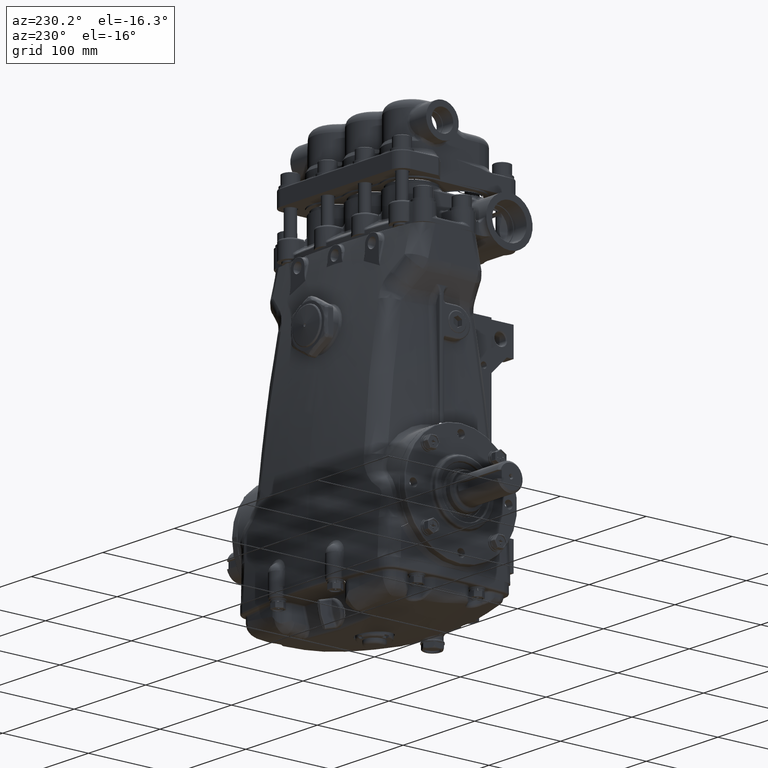
[diagram: clean part render]
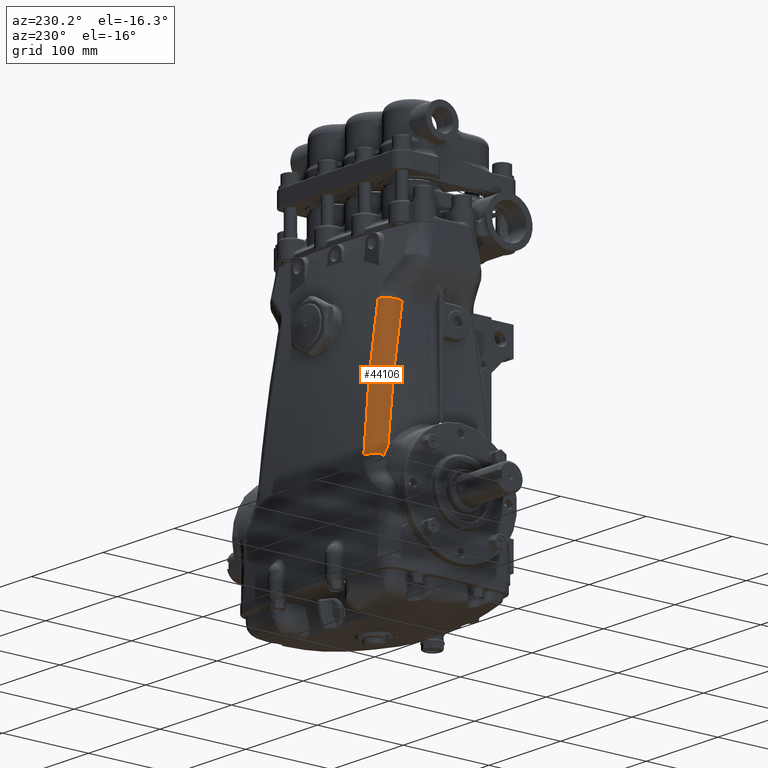
[diagram: same view with one face highlighted and labeled with its STEP entity id]
A machine part, auxiliary view. The second image highlights one B-rep face of the part: STEP entity #44106.
In plain terms, the highlighted face is a freeform B-spline surface patch.
Its self-contained STEP definition (entity closure, byte-faithful):
#56 = CARTESIAN_POINT ( 'NONE',  ( -3.412023746535997937, 2.228146809416287066, 1.648877996829962944 ) ) ;
#6515 = CARTESIAN_POINT ( 'NONE',  ( -3.305250771824411515, 2.539804507432923852, 3.796615217845411117 ) ) ;
#7653 = CARTESIAN_POINT ( 'NONE',  ( -3.316973925557753056, 2.598871768293791185, 3.302693767485248788 ) ) ;
#8103 = CARTESIAN_POINT ( 'NONE',  ( -2.727387038897051141, 2.407829629809868255, 5.270544452481712661 ) ) ;
#9211 = CARTESIAN_POINT ( 'NONE',  ( -2.676857229982789299, 2.070946853352749528, 7.233103527085059881 ) ) ;
#9577 = CARTESIAN_POINT ( 'NONE',  ( -3.401077525312897532, 2.354719680387865832, 1.415475607044618611 ) ) ;
#13749 = AXIS2_PLACEMENT_3D ( 'NONE', #89545, #88416, #35800 ) ;
#14219 = EDGE_CURVE ( 'NONE', #26230, #43195, #84386, .T. ) ;
#15087 = CARTESIAN_POINT ( 'NONE',  ( -3.269692321802375456, 1.460513298219530354, 7.135318008206845697 ) ) ;
#17811 = CARTESIAN_POINT ( 'NONE',  ( -2.780239924302705834, 2.663358001609924752, 3.295541047655350386 ) ) ;
#18902 = CARTESIAN_POINT ( 'NONE',  ( -3.386209788244205487, 2.139713064070962734, 2.568349735116830068 ) ) ;
#26230 = VERTEX_POINT ( 'NONE', #28633 ) ;
#28633 = CARTESIAN_POINT ( 'NONE',  ( -2.837186997480470652, 2.855672659389266510, 1.313526863681635293 ) ) ;
#29652 = VERTEX_POINT ( 'NONE', #31704 ) ;
#31652 = CARTESIAN_POINT ( 'NONE',  ( -3.422593240072738130, 2.259887752766226665, 1.282466704645465638 ) ) ;
#31704 = CARTESIAN_POINT ( 'NONE',  ( -2.676857229982789299, 2.070946853352749528, 7.233103527085059881 ) ) ;
#35457 = CARTESIAN_POINT ( 'NONE',  ( -3.361618648533276410, 2.034251877551805698, 3.486079300572620276 ) ) ;
#35492 = ORIENTED_EDGE ( 'NONE', *, *, #49544, .F. ) ;
#35800 = DIRECTION ( 'NONE',  ( 0.000000000000000000, -0.9833515544445361467, -0.1817132916754141958 ) ) ;
#35843 = B_SPLINE_CURVE_WITH_KNOTS ( 'NONE', 3,
 ( #52093, #105819, #88655, #17811, #52651, #8103, #86972, #9211 ),
 .UNSPECIFIED., .F., .F.,
 ( 4, 2, 2, 4 ),
 ( 0.000000000000000000, 0.03794986814998103225, 0.07589973629996206450, 0.1517994725999241012 ),
 .UNSPECIFIED. ) ;
#36563 = CARTESIAN_POINT ( 'NONE',  ( -3.349694606955345488, 1.975843327882857769, 3.944405702662852509 ) ) ;
#37074 = EDGE_CURVE ( 'NONE', #43195, #86701, #79983, .T. ) ;
#40191 = CARTESIAN_POINT ( 'NONE',  ( -3.354518012884417644, 2.750554523885196723, 1.819490144455548242 ) ) ;
#40694 = CARTESIAN_POINT ( 'NONE',  ( -3.269692321802373680, 1.460513298219533684, 7.135318008206841256 ) ) ;
#41910 = FACE_OUTER_BOUND ( 'NONE', #49374, .T. ) ;
#42473 = CARTESIAN_POINT ( 'NONE',  ( -3.368051740135756145, 2.064080126449676200, 3.241797172651021519 ) ) ;
#43195 = VERTEX_POINT ( 'NONE', #112130 ) ;
#44106 = ADVANCED_FACE ( 'NONE', ( #41910 ), #105051, .T. ) ;
#44111 = ORIENTED_EDGE ( 'NONE', *, *, #37074, .T. ) ;
#49374 = EDGE_LOOP ( 'NONE', ( #76915, #44111, #80024, #93155, #35492 ) ) ;
#49544 = EDGE_CURVE ( 'NONE', #26230, #29652, #35843, .T. ) ;
#49938 = CARTESIAN_POINT ( 'NONE',  ( -2.676857229982788855, 2.070946853352749528, 7.233103527085059881 ) ) ;
#50516 = CARTESIAN_POINT ( 'NONE',  ( -2.727391626180491357, 2.407858021193011844, 5.270364931178337820 ) ) ;
#51074 = CARTESIAN_POINT ( 'NONE',  ( -3.293871002339994636, 1.644875297278592496, 6.166911088640831373 ) ) ;
#52093 = CARTESIAN_POINT ( 'NONE',  ( -2.837186997480470652, 2.855672659389266510, 1.313526863681635293 ) ) ;
#52651 = CARTESIAN_POINT ( 'NONE',  ( -2.766803059944227705, 2.604178637981974465, 3.790044207635421269 ) ) ;
#57382 = CARTESIAN_POINT ( 'NONE',  ( -3.394592116259354864, 2.171678518805231217, 2.262962045627521235 ) ) ;
#58517 = CARTESIAN_POINT ( 'NONE',  ( -3.341604198684125393, 2.704211629085266910, 2.314305608251909785 ) ) ;
#59664 = CARTESIAN_POINT ( 'NONE',  ( -3.230503284124915719, 2.007346878816802072, 7.235374603559454165 ) ) ;
#59944 = VERTEX_POINT ( 'NONE', #40694 ) ;
#61315 = DIRECTION ( 'NONE',  ( 0.02924498063840545378, -0.08067639627460114482, 0.9963112215525844473 ) ) ;
#67083 = CARTESIAN_POINT ( 'NONE',  ( -3.317664160059512923, 1.803797078783872632, 5.194718756889232125 ) ) ;
#67645 = CARTESIAN_POINT ( 'NONE',  ( -3.408309244324856824, 2.219019024289642594, 1.772990347334141070 ) ) ;
#67970 = AXIS2_PLACEMENT_3D ( 'NONE', #69325, #61315, #87060 ) ;
#69325 = CARTESIAN_POINT ( 'NONE',  ( -2.757062907678605068, 2.193555800672997158, 1.257559984735997949 ) ) ;
#74722 = CARTESIAN_POINT ( 'NONE',  ( -3.412023746535997937, 2.228146809416287066, 1.648877996829962944 ) ) ;
#75091 = CARTESIAN_POINT ( 'NONE',  ( -2.837186997480475092, 2.855672659389266510, 1.313526863681624857 ) ) ;
#76242 = CARTESIAN_POINT ( 'NONE',  ( -2.702330158259557358, 2.251865023987564829, 6.253645100800566681 ) ) ;
#76915 = ORIENTED_EDGE ( 'NONE', *, *, #14219, .T. ) ;
#78365 = CARTESIAN_POINT ( 'NONE',  ( -3.314677885994496087, 1.783796561539602976, 5.316465458283545331 ) ) ;
#79983 = B_SPLINE_CURVE_WITH_KNOTS ( 'NONE', 3,
 ( #87892, #9577, #106741, #105631 ),
 .UNSPECIFIED., .F., .F.,
 ( 4, 4 ),
 ( 4.105691395885628804E-16, 0.01011884311821856751 ),
 .UNSPECIFIED. ) ;
#80024 = ORIENTED_EDGE ( 'NONE', *, *, #93472, .F. ) ;
#84386 = CIRCLE ( 'NONE', #67970, 0.6692913385826771977 ) ;
#85950 = CARTESIAN_POINT ( 'NONE',  ( -3.355225521561935320, 2.003805294834428263, 3.730779747307276129 ) ) ;
#86701 = VERTEX_POINT ( 'NONE', #74722 ) ;
#86972 = CARTESIAN_POINT ( 'NONE',  ( -2.702327773508746755, 2.251848087021853129, 6.253736794521518760 ) ) ;
#87060 = DIRECTION ( 'NONE',  ( 0.000000000000000000, 0.9967375520400281186, 0.08071091842652006187 ) ) ;
#87706 = EDGE_CURVE ( 'NONE', #29652, #59944, #106861, .T. ) ;
#87892 = CARTESIAN_POINT ( 'NONE',  ( -3.390487766027045602, 2.406718505480955006, 1.293413938590568746 ) ) ;
#88416 = DIRECTION ( 'NONE',  ( 0.02490029757665672069, -0.1816569495652557431, 0.9830466559910777669 ) ) ;
#88655 = CARTESIAN_POINT ( 'NONE',  ( -2.807991502153638130, 2.769022985825891237, 2.305476115134585946 ) ) ;
#89200 = CARTESIAN_POINT ( 'NONE',  ( -3.398877834969281864, 2.186773139856743153, 2.108903812612397566 ) ) ;
#89545 = CARTESIAN_POINT ( 'NONE',  ( -2.602265884119150829, 1.417238444970173150, 7.110415533239038410 ) ) ;
#90853 = B_SPLINE_CURVE_WITH_KNOTS ( 'NONE', 3,
 ( #106918, #106354, #78365, #36563, #35457, #18902, #89200, #56 ),
 .UNSPECIFIED., .F., .F.,
 ( 4, 2, 2, 4 ),
 ( 8.441528768080324345E-17, 0.07039193455788995968, 0.1055879018368349187, 0.1407838691157798916 ),
 .UNSPECIFIED. ) ;
#92290 = CARTESIAN_POINT ( 'NONE',  ( -2.822314193015493800, 2.815537606187361597, 1.809637524023852917 ) ) ;
#93155 = ORIENTED_EDGE ( 'NONE', *, *, #87706, .F. ) ;
#93472 = EDGE_CURVE ( 'NONE', #59944, #86701, #90853, .T. ) ;
#94536 = CARTESIAN_POINT ( 'NONE',  ( -2.766811350596895647, 2.604217166326758370, 3.789736414380862506 ) ) ;
#100848 = CARTESIAN_POINT ( 'NONE',  ( -3.250768381405691798, 2.187466029555262370, 6.260317576798208883 ) ) ;
#101987 = CARTESIAN_POINT ( 'NONE',  ( -2.780249848885131492, 2.663399266725750891, 3.295180451966416957 ) ) ;
#102552 = CARTESIAN_POINT ( 'NONE',  ( -3.368155235802738900, 2.790547471970053373, 1.323838993264630837 ) ) ;
#105051 =( BOUNDED_SURFACE ( )  B_SPLINE_SURFACE ( 3, 2, ( 
 ( #49938, #59664, #15087 ),
 ( #76242, #100848, #51074 ),
 ( #50516, #110579, #67083 ),
 ( #94536, #6515, #85950 ),
 ( #101987, #7653, #42473 ),
 ( #109437, #58517, #57382 ),
 ( #92290, #40191, #67645 ),
 ( #75091, #102552, #31652 ) ),
 .UNSPECIFIED., .F., .F., .F. ) 
 B_SPLINE_SURFACE_WITH_KNOTS ( ( 4, 2, 2, 4 ),
 ( 3, 3 ),
 ( 0.2725727886429149538, 0.3476365241298011721, 0.3851683918732442535, 0.4227002596166873349 ),
 ( 0.000000000000000000, 1.000000000000000000 ),
 .UNSPECIFIED. ) 
 GEOMETRIC_REPRESENTATION_ITEM ( )  RATIONAL_B_SPLINE_SURFACE ( (
 ( 1.000000000000000000, 0.7684759235987798087, 1.000000000000000000),
 ( 1.000000000000000000, 0.7713435781913434708, 1.000000000000000000),
 ( 1.000000000000000000, 0.7738134170434826098, 1.000000000000000000),
 ( 1.000000000000000000, 0.7769544004608318621, 1.000000000000000000),
 ( 1.000000000000000000, 0.7779078241432019203, 1.000000000000000000),
 ( 1.000000000000000000, 0.7796337955002093922, 1.000000000000000000),
 ( 1.000000000000000000, 0.7804061436773038762, 1.000000000000000000),
 ( 1.000000000000000000, 0.7810887547432305844, 1.000000000000000000) ) ) 
 REPRESENTATION_ITEM ( '' )  SURFACE ( )  );
#105631 = CARTESIAN_POINT ( 'NONE',  ( -3.412023746535997937, 2.228146809416287066, 1.648877996829962944 ) ) ;
#105819 = CARTESIAN_POINT ( 'NONE',  ( -2.822308871440877720, 2.815523245204432534, 1.809815040358777605 ) ) ;
#106354 = CARTESIAN_POINT ( 'NONE',  ( -3.292354361583460065, 1.633310939118002514, 6.227655735173276419 ) ) ;
#106741 = CARTESIAN_POINT ( 'NONE',  ( -3.409708230257064709, 2.295426536734160639, 1.533991576146906066 ) ) ;
#106861 = CIRCLE ( 'NONE', #13749, 0.6692913385826773087 ) ;
#106918 = CARTESIAN_POINT ( 'NONE',  ( -3.269692321802373680, 1.460513298219533684, 7.135318008206841256 ) ) ;
#109437 = CARTESIAN_POINT ( 'NONE',  ( -2.807999669483290273, 2.769050603952768697, 2.305191268259241255 ) ) ;
#110579 = CARTESIAN_POINT ( 'NONE',  ( -3.271427354470537452, 2.343571490986793737, 5.277186449557548897 ) ) ;
#112130 = CARTESIAN_POINT ( 'NONE',  ( -3.390487766027045602, 2.406718505480955006, 1.293413938590568746 ) ) ;